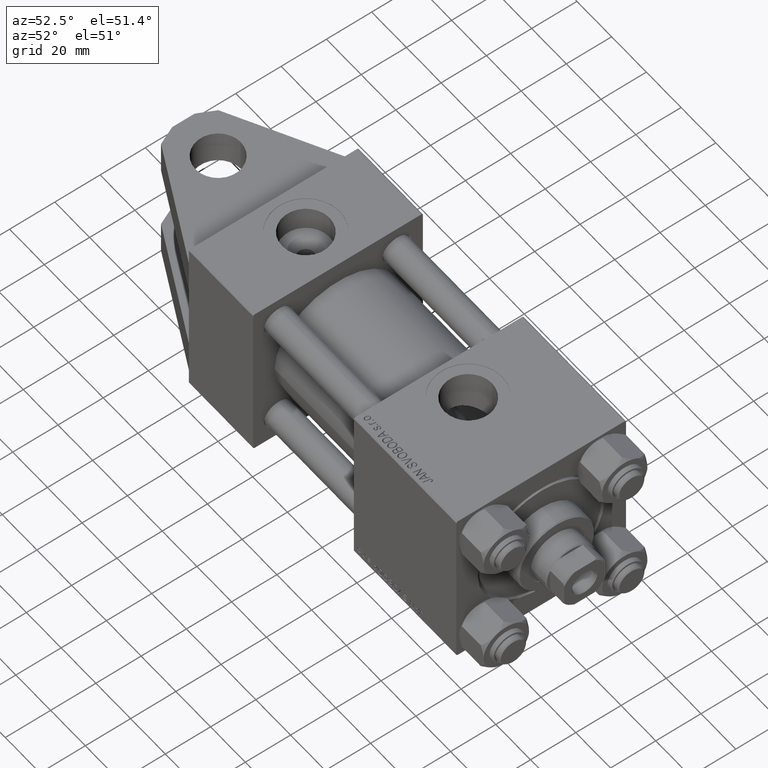
[diagram: clean part render]
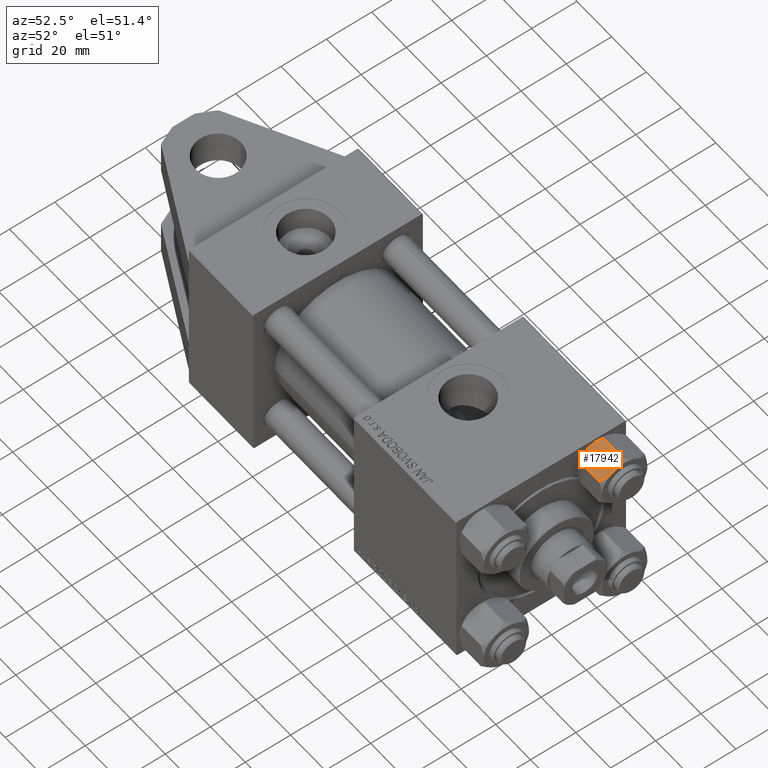
[diagram: same view with one face highlighted and labeled with its STEP entity id]
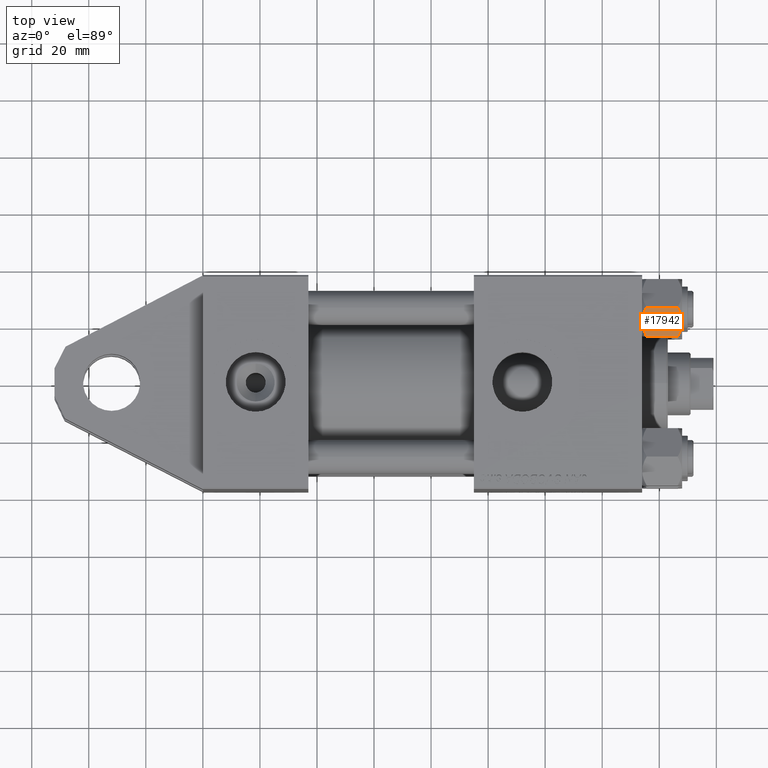
[diagram: same view with one face highlighted and labeled with its STEP entity id]
A machine part, auxiliary view. The second image highlights one B-rep face of the part: STEP entity #17942.
A second angle (top view) of the same face is appended — the face is thin or edge-on in the first view.
In plain terms, the highlighted planar face has unit normal (-0, 0.5, -0.866).
Its self-contained STEP definition (entity closure, byte-faithful):
#179 = EDGE_CURVE ( 'NONE', #36621, #48400, #2654, .T. ) ;
#364 = LINE ( 'NONE', #27625, #50468 ) ;
#2654 = B_SPLINE_CURVE_WITH_KNOTS ( 'NONE', 3,
 ( #7099, #10730, #6313, #22956, #34878, #38777, #3213, #19080, #15157 ),
 .UNSPECIFIED., .F., .F.,
 ( 4, 2, 1, 2, 4 ),
 ( 0.02074012592819902273, 0.02149589804477578664, 0.02225167016135255402, 0.02376321439450608530, 0.02678630286081314441 ),
 .UNSPECIFIED. ) ;
#3192 = CARTESIAN_POINT ( 'NONE',  ( -0.5112014849988886223, -10.06321519197517489, -13.99019602057109068 ) ) ;
#3213 = CARTESIAN_POINT ( 'NONE',  ( 3.960942496020604331, -10.06321519197518022, -0.7115728323610380768 ) ) ;
#3950 = CARTESIAN_POINT ( 'NONE',  ( 1.502314598737159820E-15, -10.06321519197518022, -14.00000000000000000 ) ) ;
#4121 = EDGE_CURVE ( 'NONE', #6505, #41331, #45295, .T. ) ;
#4803 = CARTESIAN_POINT ( 'NONE',  ( -4.900668367960793859, -10.06321519197517667, -1.121556683709771463 ) ) ;
#6076 = CARTESIAN_POINT ( 'NONE',  ( 4.900668367960796523, -10.06321519197517489, -12.87844331629023209 ) ) ;
#6313 = CARTESIAN_POINT ( 'NONE',  ( 0.5112014849988879561, -10.06321519197517667, -0.009803979428909967431 ) ) ;
#6505 = VERTEX_POINT ( 'NONE', #23911 ) ;
#7099 = CARTESIAN_POINT ( 'NONE',  ( 1.502314598737159623E-15, -10.06321519197518199, 0.000000000000000000 ) ) ;
#7108 = CARTESIAN_POINT ( 'NONE',  ( 5.810000000000000497, -10.06321519197517667, -12.44321519197518633 ) ) ;
#8345 = AXIS2_PLACEMENT_3D ( 'NONE', #37366, #40512, #16884 ) ;
#8950 = CARTESIAN_POINT ( 'NONE',  ( -1.020132157807625450, -10.06321519197517489, 4.052205619664572033E-15 ) ) ;
#9771 = ORIENTED_EDGE ( 'NONE', *, *, #4121, .F. ) ;
#10212 = CARTESIAN_POINT ( 'NONE',  ( 1.020132157807625672, -10.06321519197517489, -14.00000000000000178 ) ) ;
#10372 = CARTESIAN_POINT ( 'NONE',  ( 5.810000000000000497, -10.06321519197517667, -1.556784808024811895 ) ) ;
#10730 = CARTESIAN_POINT ( 'NONE',  ( 0.2543996698847484361, -10.06321519197517667, 4.398642095091581661E-15 ) ) ;
#13018 = ORIENTED_EDGE ( 'NONE', *, *, #37986, .T. ) ;
#14115 = CARTESIAN_POINT ( 'NONE',  ( 5.359707691559676412, -10.06321519197517844, -12.66836134619534882 ) ) ;
#14645 = B_SPLINE_CURVE_WITH_KNOTS ( 'NONE', 3,
 ( #7108, #14115, #6076, #22183, #42422, #29937, #10212, #41891 ),
 .UNSPECIFIED., .F., .F.,
 ( 4, 2, 2, 4 ),
 ( 0.01467889604968879332, 0.01619420351931635110, 0.01770951098894391063, 0.02074012592819902620 ),
 .UNSPECIFIED. ) ;
#15157 = CARTESIAN_POINT ( 'NONE',  ( 5.810000000000000497, -10.06321519197517667, -1.556784808024811895 ) ) ;
#16226 = CARTESIAN_POINT ( 'NONE',  ( -3.958929922320420403, -10.06321519197517844, -0.7421398502353970805 ) ) ;
#16420 = CARTESIAN_POINT ( 'NONE',  ( -1.772424303831128478, -10.06321519197517489, -13.86611290782776251 ) ) ;
#16613 = DIRECTION ( 'NONE',  ( -0.000000000000000000, -0.000000000000000000, 1.000000000000000000 ) ) ;
#16884 = DIRECTION ( 'NONE',  ( -1.000000000000000000, -1.492877345935290102E-16, 0.000000000000000000 ) ) ;
#16977 = DIRECTION ( 'NONE',  ( -0.000000000000000000, -0.000000000000000000, 1.000000000000000000 ) ) ;
#17255 = CARTESIAN_POINT ( 'NONE',  ( -5.359707691559672860, -10.06321519197517844, -1.331638653804651851 ) ) ;
#17481 = CARTESIAN_POINT ( 'NONE',  ( 1.502314598737159623E-15, -10.06321519197518199, 0.000000000000000000 ) ) ;
#17720 = EDGE_CURVE ( 'NONE', #24086, #36621, #28257, .T. ) ;
#17942 = ADVANCED_FACE ( 'NONE', ( #25672 ), #24674, .F. ) ;
#19080 = CARTESIAN_POINT ( 'NONE',  ( 4.908816193182381937, -10.06321519197517844, -1.106192904616003059 ) ) ;
#20015 = CARTESIAN_POINT ( 'NONE',  ( 5.810000000000000497, -10.06321519197517667, -14.00000000000000000 ) ) ;
#20183 = EDGE_LOOP ( 'NONE', ( #42843, #13018, #24124, #30773, #32876, #9771 ) ) ;
#20200 = CARTESIAN_POINT ( 'NONE',  ( -5.810000000000000497, -10.06321519197517844, -1.556784808024813893 ) ) ;
#20849 = CARTESIAN_POINT ( 'NONE',  ( -4.908816193182379273, -10.06321519197517667, -12.89380709538398939 ) ) ;
#21093 = CARTESIAN_POINT ( 'NONE',  ( -1.018274738099085086, -10.06321519197517667, -13.95177257919929126 ) ) ;
#22183 = CARTESIAN_POINT ( 'NONE',  ( 3.958929922320422179, -10.06321519197517489, -13.25786014976459803 ) ) ;
#22956 = CARTESIAN_POINT ( 'NONE',  ( 1.018274738099083976, -10.06321519197517667, -0.04822742080070548110 ) ) ;
#23911 = CARTESIAN_POINT ( 'NONE',  ( 1.502314598737159820E-15, -10.06321519197518022, -14.00000000000000000 ) ) ;
#24086 = VERTEX_POINT ( 'NONE', #20200 ) ;
#24124 = ORIENTED_EDGE ( 'NONE', *, *, #179, .F. ) ;
#24674 = PLANE ( 'NONE',  #8345 ) ;
#25672 = FACE_OUTER_BOUND ( 'NONE', #20183, .T. ) ;
#26814 = CARTESIAN_POINT ( 'NONE',  ( -5.810000000000000497, -10.06321519197517844, -12.44321519197518455 ) ) ;
#27625 = CARTESIAN_POINT ( 'NONE',  ( -5.810000000000000497, -10.06321519197517844, -14.00000000000000000 ) ) ;
#28257 = B_SPLINE_CURVE_WITH_KNOTS ( 'NONE', 3,
 ( #28422, #17255, #4803, #16226, #48441, #36723, #8950, #40637 ),
 .UNSPECIFIED., .F., .F.,
 ( 4, 2, 2, 4 ),
 ( 0.01467889604968879332, 0.01619420351931635110, 0.01770951098894390716, 0.02074012592819902273 ),
 .UNSPECIFIED. ) ;
#28422 = CARTESIAN_POINT ( 'NONE',  ( -5.810000000000000497, -10.06321519197517844, -1.556784808024813893 ) ) ;
#29858 = CARTESIAN_POINT ( 'NONE',  ( 5.810000000000000497, -10.06321519197517667, -12.44321519197518633 ) ) ;
#29937 = CARTESIAN_POINT ( 'NONE',  ( 2.013954290287967019, -10.06321519197517489, -13.84298883202400532 ) ) ;
#30773 = ORIENTED_EDGE ( 'NONE', *, *, #17720, .F. ) ;
#32233 = VECTOR ( 'NONE', #16613, 1000.000000000000000 ) ;
#32558 = VERTEX_POINT ( 'NONE', #29858 ) ;
#32876 = ORIENTED_EDGE ( 'NONE', *, *, #37228, .F. ) ;
#34878 = CARTESIAN_POINT ( 'NONE',  ( 1.772424303831126258, -10.06321519197517311, -0.1338870921722345175 ) ) ;
#36621 = VERTEX_POINT ( 'NONE', #17481 ) ;
#36723 = CARTESIAN_POINT ( 'NONE',  ( -2.013954290287968352, -10.06321519197517844, -0.1570111679759963463 ) ) ;
#37157 = CARTESIAN_POINT ( 'NONE',  ( -3.960942496020602555, -10.06321519197517667, -13.28842716763895737 ) ) ;
#37228 = EDGE_CURVE ( 'NONE', #41331, #24086, #364, .T. ) ;
#37366 = CARTESIAN_POINT ( 'NONE',  ( 5.810000000000000497, -10.06321519197517667, -14.00000000000000000 ) ) ;
#37986 = EDGE_CURVE ( 'NONE', #32558, #48400, #39718, .T. ) ;
#38755 = CARTESIAN_POINT ( 'NONE',  ( -0.2543996698847483806, -10.06321519197517667, -14.00000000000000355 ) ) ;
#38777 = CARTESIAN_POINT ( 'NONE',  ( 2.508586450168040827, -10.06321519197517667, -0.2975752632032254708 ) ) ;
#39718 = LINE ( 'NONE', #20015, #32233 ) ;
#39830 = EDGE_CURVE ( 'NONE', #32558, #6505, #14645, .T. ) ;
#40512 = DIRECTION ( 'NONE',  ( -1.492877345935290102E-16, 1.000000000000000000, 0.000000000000000000 ) ) ;
#40637 = CARTESIAN_POINT ( 'NONE',  ( 1.502314598737159623E-15, -10.06321519197518199, 0.000000000000000000 ) ) ;
#41331 = VERTEX_POINT ( 'NONE', #26814 ) ;
#41891 = CARTESIAN_POINT ( 'NONE',  ( 1.502314598737159820E-15, -10.06321519197518022, -14.00000000000000000 ) ) ;
#42422 = CARTESIAN_POINT ( 'NONE',  ( 3.474497094393254049, -10.06321519197517667, -13.42730390989572697 ) ) ;
#42843 = ORIENTED_EDGE ( 'NONE', *, *, #39830, .F. ) ;
#45295 = B_SPLINE_CURVE_WITH_KNOTS ( 'NONE', 3,
 ( #3950, #38755, #3192, #21093, #16420, #48882, #37157, #20849, #48373 ),
 .UNSPECIFIED., .F., .F.,
 ( 4, 2, 1, 2, 4 ),
 ( 0.02074012592819902620, 0.02149589804477579011, 0.02225167016135255749, 0.02376321439450608530, 0.02678630286081314441 ),
 .UNSPECIFIED. ) ;
#48373 = CARTESIAN_POINT ( 'NONE',  ( -5.810000000000000497, -10.06321519197517844, -12.44321519197518455 ) ) ;
#48400 = VERTEX_POINT ( 'NONE', #10372 ) ;
#48441 = CARTESIAN_POINT ( 'NONE',  ( -3.474497094393254937, -10.06321519197517844, -0.5726960901042742469 ) ) ;
#48882 = CARTESIAN_POINT ( 'NONE',  ( -2.508586450168039494, -10.06321519197517844, -13.70242473679676998 ) ) ;
#50468 = VECTOR ( 'NONE', #16977, 1000.000000000000000 ) ;